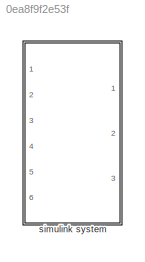
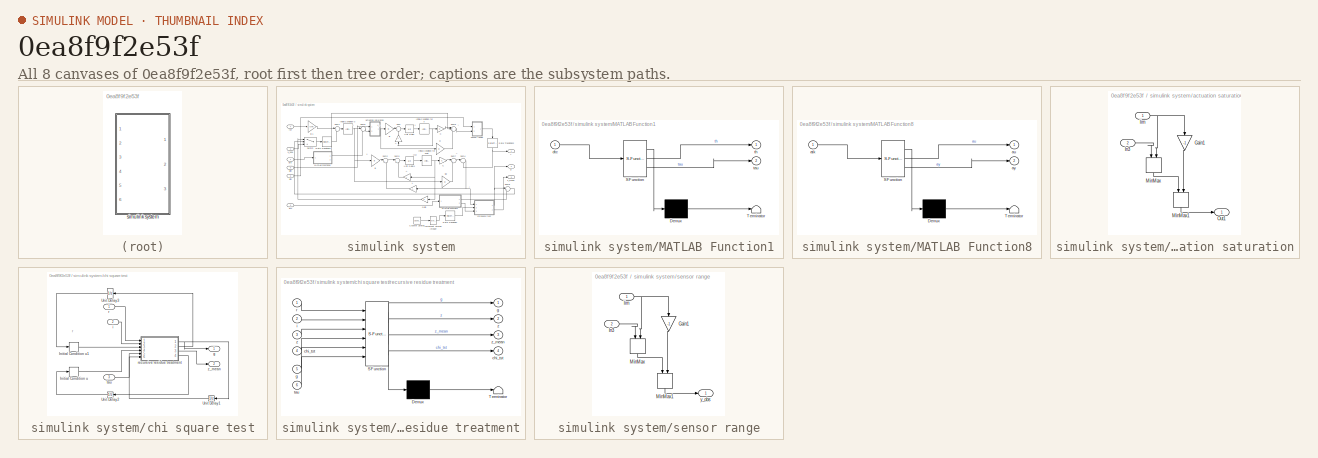
[diagram: thumbnail index - all 8 canvases of the model, root first then tree order]
MODEL slx_0ea8f9f2e53f
KIND model
CONFIG AbsTol = auto
CONFIG EnableMultiTasking = off
CONFIG FixedStep = auto
CONFIG MaxStep = auto
CONFIG MinStep = auto
CONFIG RelTol = 1e-3
CONFIG SampleTimeConstraint = Unconstrained
CONFIG SolverName = VariableStepAuto
CONFIG StartTime = 0.0
CONFIG StopTime = 7.1
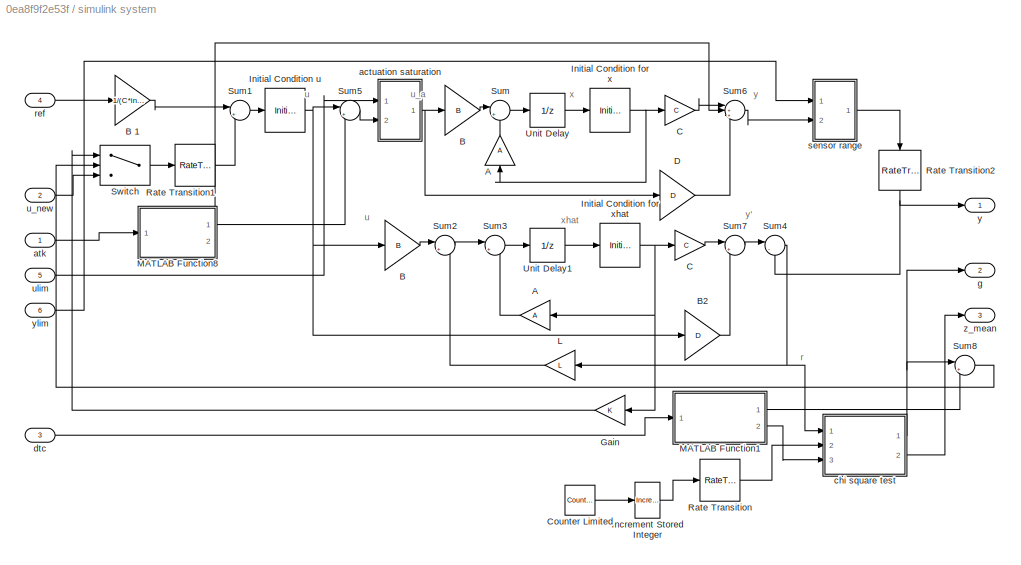
BLOCK [SubSystem] simulink system
  Ports = [6, 3]
  RequestExecContextInheritance = off
BLOCK [Gain] simulink system/A
  Gain = A
  Multiplication = Matrix(K*u)
  NameLocation = top
BLOCK [Gain] simulink system/A 
  Gain = A
  Multiplication = Matrix(K*u)
  NameLocation = right
BLOCK [Gain] simulink system/B
  Gain = B
  Multiplication = Matrix(K*u)
BLOCK [Gain] simulink system/B 
  Gain = B
  Multiplication = Matrix(K*u)
BLOCK [Gain] simulink system/B 1
  Gain = 1/(C*inv(eye(size(A))-A-B*K)*B)
  Multiplication = Matrix(K*u)
BLOCK [Gain] simulink system/B2
  Gain = D
  Multiplication = Matrix(K*u)
BLOCK [Gain] simulink system/C
  Gain = C
  Multiplication = Matrix(K*u)
BLOCK [Gain] simulink system/C 
  Gain = C
  Multiplication = Matrix(K*u)
BLOCK [Reference] simulink system/Counter Limited  REF=simulink/Sources/Counter
Limited
  Ports = [0, 1]
  SourceBlock = simulink/Sources/Counter\nLimited
  SourceProductBaseCode = SL
  SourceType = Counter Limited
BLOCK [Gain] simulink system/D
  Gain = D
  Multiplication = Matrix(K*u)
BLOCK [Gain] simulink system/Gain
  Gain = K
  Multiplication = Matrix(K*u)
  NameLocation = top
BLOCK [Reference] simulink system/Increment Stored Integer  REF=simulink/Additional Math
& Discrete/Additional Math:
Increment - Decrement/Increment
Stored Integer
  Ports = [1, 1]
  SourceBlock = simulink/Additional Math\n& Discrete/Additional Math:\nIncrement - Decrement/Increment\nStored Integer
  SourceProductBaseCode = SL
  SourceType = Stored Integer Value Increment
BLOCK [InitialCondition] simulink system/Initial Condition for x
  Value = [0;0]
BLOCK [InitialCondition] simulink system/Initial Condition for xhat
  Value = [0;0]
BLOCK [InitialCondition] simulink system/Initial Condition u
  Value = zeros(size(B,2),1)
BLOCK [Gain] simulink system/L
  Gain = L
  Multiplication = Matrix(K*u)
  NameLocation = top
BLOCK [SubSystem] simulink system/MATLAB Function1
  ErrorFcn = Stateflow.Translate.translate
  PermitHierarchicalResolution = ExplicitOnly
  Ports = [1, 2]
  RequestExecContextInheritance = off
  SFBlockType = MATLAB Function
  TreatAsAtomicUnit = on
BLOCK [Demux] simulink system/MATLAB Function1/ Demux 
  Outputs = 1
  Ports = [1, 1]
BLOCK [S-Function] simulink system/MATLAB Function1/ SFunction 
  EnableBusSupport = on
  FunctionName = sf_sfun
  PortCounts = [1 3]
  Ports = [1, 3]
  SFcnIsStateOwnerBlock = off
  SFunctionDeploymentMode = off
  Tag = Stateflow S-Function 2
BLOCK [Terminator] simulink system/MATLAB Function1/ Terminator 
BLOCK [Inport] simulink system/MATLAB Function1/dtc
BLOCK [Outport] simulink system/MATLAB Function1/tau
  Port = 2
BLOCK [Outport] simulink system/MATLAB Function1/th
BLOCK [SubSystem] simulink system/MATLAB Function8
  ErrorFcn = Stateflow.Translate.translate
  PermitHierarchicalResolution = ExplicitOnly
  Ports = [1, 2]
  RequestExecContextInheritance = off
  SFBlockType = MATLAB Function
  TreatAsAtomicUnit = on
BLOCK [Demux] simulink system/MATLAB Function8/ Demux 
  Outputs = 1
  Ports = [1, 1]
BLOCK [S-Function] simulink system/MATLAB Function8/ SFunction 
  EnableBusSupport = on
  FunctionName = sf_sfun
  PortCounts = [1 3]
  Ports = [1, 3]
  SFcnIsStateOwnerBlock = off
  SFunctionDeploymentMode = off
  Tag = Stateflow S-Function 11
BLOCK [Terminator] simulink system/MATLAB Function8/ Terminator 
BLOCK [Inport] simulink system/MATLAB Function8/atk
BLOCK [Outport] simulink system/MATLAB Function8/au
BLOCK [Outport] simulink system/MATLAB Function8/ay
  Port = 2
BLOCK [RateTransition] simulink system/Rate Transition
  OutPortSampleTime = Ts
BLOCK [RateTransition] simulink system/Rate Transition1
  OutPortSampleTime = Ts
BLOCK [RateTransition] simulink system/Rate Transition2
  NameLocation = left
  OutPortSampleTime = Ts
BLOCK [Sum] simulink system/Sum
  Inputs = |++
  Ports = [2, 1]
BLOCK [Sum] simulink system/Sum1
  Inputs = |+-
  Ports = [2, 1]
BLOCK [Sum] simulink system/Sum2
  Inputs = |++
  Ports = [2, 1]
BLOCK [Sum] simulink system/Sum3
  Inputs = |++
  Ports = [2, 1]
BLOCK [Sum] simulink system/Sum4
  Inputs = |-+
  NameLocation = top
  Ports = [2, 1]
BLOCK [Sum] simulink system/Sum5
  Inputs = |++
  Ports = [2, 1]
BLOCK [Sum] simulink system/Sum6
  Inputs = |+++
  Ports = [3, 1]
BLOCK [Sum] simulink system/Sum7
  Inputs = |++
  NameLocation = top
  Ports = [2, 1]
BLOCK [Sum] simulink system/Sum8
  Inputs = |+-
  Ports = [2, 1]
BLOCK [Switch] simulink system/Switch
  Criteria = u2 > Threshold
  InputSameDT = off
  SaturateOnIntegerOverflow = off
BLOCK [UnitDelay] simulink system/Unit Delay
  HasFrameUpgradeWarning = on
  SampleTime = -1
BLOCK [UnitDelay] simulink system/Unit Delay1
  HasFrameUpgradeWarning = on
  SampleTime = -1
BLOCK [SubSystem] simulink system/actuation saturation
  Ports = [2, 1]
  RequestExecContextInheritance = off
BLOCK [Gain] simulink system/actuation saturation/Gain1
  Gain = -1
  NameLocation = left
BLOCK [Inport] simulink system/actuation saturation/In3
  Port = 2
BLOCK [MinMax] simulink system/actuation saturation/MinMax
  Inputs = 2
  NameLocation = left
  Ports = [2, 1]
BLOCK [MinMax] simulink system/actuation saturation/MinMax1
  Function = max
  Inputs = 2
  NameLocation = left
  Ports = [2, 1]
BLOCK [Outport] simulink system/actuation saturation/Out1
BLOCK [Inport] simulink system/actuation saturation/lim
BLOCK [Inport] simulink system/atk
BLOCK [SubSystem] simulink system/chi square test
  Ports = [3, 2]
  RequestExecContextInheritance = off
BLOCK [InitialCondition] simulink system/chi square test/Initial Condition u
  Value = [0]
BLOCK [InitialCondition] simulink system/chi square test/Initial Condition u1
  Value = [0]
BLOCK [UnitDelay] simulink system/chi square test/Unit Delay1
  HasFrameUpgradeWarning = on
  SampleTime = Ts
BLOCK [UnitDelay] simulink system/chi square test/Unit Delay2
  HasFrameUpgradeWarning = on
  SampleTime = Ts
BLOCK [UnitDelay] simulink system/chi square test/Unit Delay3
  HasFrameUpgradeWarning = on
  InitialCondition = [0]
  SampleTime = Ts
BLOCK [Outport] simulink system/chi square test/g
BLOCK [Inport] simulink system/chi square test/i
  Port = 2
BLOCK [Inport] simulink system/chi square test/r
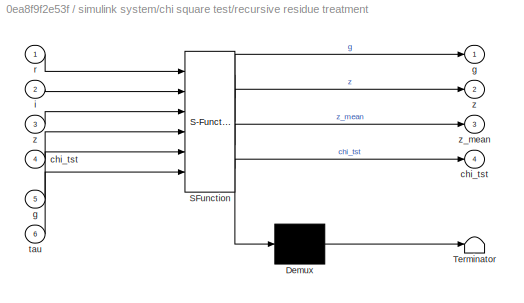
BLOCK [SubSystem] simulink system/chi square test/recursive residue treatment
  ErrorFcn = Stateflow.Translate.translate
  PermitHierarchicalResolution = ExplicitOnly
  Ports = [6, 4]
  RequestExecContextInheritance = off
  SFBlockType = MATLAB Function
  TreatAsAtomicUnit = on
BLOCK [Demux] simulink system/chi square test/recursive residue treatment/ Demux 
  Outputs = 1
  Ports = [1, 1]
BLOCK [S-Function] simulink system/chi square test/recursive residue treatment/ SFunction 
  EnableBusSupport = on
  FunctionName = sf_sfun
  PortCounts = [6 5]
  Ports = [6, 5]
  SFcnIsStateOwnerBlock = off
  SFunctionDeploymentMode = off
  Tag = Stateflow S-Function 12
BLOCK [Terminator] simulink system/chi square test/recursive residue treatment/ Terminator 
BLOCK [Outport] simulink system/chi square test/recursive residue treatment/chi_tst
  Port = 4
BLOCK [Inport] simulink system/chi square test/recursive residue treatment/chi_tst 
  Port = 4
BLOCK [Outport] simulink system/chi square test/recursive residue treatment/g
BLOCK [Inport] simulink system/chi square test/recursive residue treatment/g 
  Port = 5
BLOCK [Inport] simulink system/chi square test/recursive residue treatment/i
  Port = 2
BLOCK [Inport] simulink system/chi square test/recursive residue treatment/r
BLOCK [Inport] simulink system/chi square test/recursive residue treatment/tau
  Port = 6
BLOCK [Outport] simulink system/chi square test/recursive residue treatment/z
  Port = 2
BLOCK [Inport] simulink system/chi square test/recursive residue treatment/z 
  Port = 3
BLOCK [Outport] simulink system/chi square test/recursive residue treatment/z_mean
  Port = 3
BLOCK [Inport] simulink system/chi square test/tau
  Port = 3
BLOCK [Outport] simulink system/chi square test/z_mean
  Port = 2
BLOCK [Inport] simulink system/dtc
  NameLocation = top
  Port = 3
BLOCK [Outport] simulink system/g
  Port = 2
BLOCK [Inport] simulink system/ref
  Port = 4
BLOCK [SubSystem] simulink system/sensor range
  Ports = [2, 1]
  RequestExecContextInheritance = off
BLOCK [Gain] simulink system/sensor range/Gain1
  Gain = -1
  NameLocation = left
BLOCK [Inport] simulink system/sensor range/In3
  Port = 2
BLOCK [MinMax] simulink system/sensor range/MinMax
  Inputs = 2
  NameLocation = left
  Ports = [2, 1]
BLOCK [MinMax] simulink system/sensor range/MinMax1
  Function = max
  Inputs = 2
  NameLocation = left
  Ports = [2, 1]
BLOCK [Inport] simulink system/sensor range/lim
BLOCK [Outport] simulink system/sensor range/y_obs
BLOCK [Inport] simulink system/u_new
  Port = 2
BLOCK [Inport] simulink system/ulim
  Port = 5
BLOCK [Outport] simulink system/y
BLOCK [Inport] simulink system/ylim
  Port = 6
BLOCK [Outport] simulink system/z_mean
  Port = 3
ANNOTATION simulink system: r
ANNOTATION simulink system: u
ANNOTATION simulink system: u_a
ANNOTATION simulink system: x
ANNOTATION simulink system: xhat
ANNOTATION simulink system: y
ANNOTATION simulink system: y'
ANNOTATION simulink system/chi square test: r
LINE simulink system/A :1 -> simulink system/Sum:2
LINE simulink system/A:1 -> simulink system/Sum3:2
LINE simulink system/B 1:1 -> simulink system/Sum1:1
LINE simulink system/B :1 -> simulink system/Sum:1
LINE simulink system/B2:1 -> simulink system/Sum7:2
LINE simulink system/B:1 -> simulink system/Sum2:1
LINE simulink system/C :1 -> simulink system/Sum6:1
LINE simulink system/C:1 -> simulink system/Sum7:1
LINE simulink system/Counter Limited:1 -> simulink system/Increment Stored Integer:1
LINE simulink system/D:1 -> simulink system/Sum6:3
LINE simulink system/Gain:1 -> simulink system/Switch:1
LINE simulink system/Increment Stored Integer:1 -> simulink system/Rate Transition:1
NET simulink system/Initial Condition for x:1 -> simulink system/A :1, simulink system/C :1
NET simulink system/Initial Condition for xhat:1 -> simulink system/A:1, simulink system/C:1, simulink system/Gain:1
NET simulink system/Initial Condition u:1 -> simulink system/B2:1, simulink system/B:1, simulink system/Sum5:1
LINE simulink system/L:1 -> simulink system/Sum2:2
LINE simulink system/MATLAB Function1:1 -> simulink system/Sum8:2
LINE simulink system/MATLAB Function1:2 -> simulink system/chi square test:3
LINE simulink system/MATLAB Function8:1 -> simulink system/Sum5:2
LINE simulink system/MATLAB Function8:2 -> simulink system/Sum6:2
LINE simulink system/Rate Transition1:1 -> simulink system/Sum1:2
NET simulink system/Rate Transition2:1 -> simulink system/Sum4:2, simulink system/y:1
LINE simulink system/Rate Transition:1 -> simulink system/chi square test:2
LINE simulink system/Sum1:1 -> simulink system/Initial Condition u:1
LINE simulink system/Sum2:1 -> simulink system/Sum3:1
LINE simulink system/Sum3:1 -> simulink system/Unit Delay1:1
NET simulink system/Sum4:1 -> simulink system/L:1, simulink system/chi square test:1
LINE simulink system/Sum5:1 -> simulink system/actuation saturation:2
LINE simulink system/Sum6:1 -> simulink system/sensor range:2
LINE simulink system/Sum7:1 -> simulink system/Sum4:1
LINE simulink system/Sum8:1 -> simulink system/Switch:2
LINE simulink system/Sum:1 -> simulink system/Unit Delay:1
LINE simulink system/Switch:1 -> simulink system/Rate Transition1:1
LINE simulink system/Unit Delay1:1 -> simulink system/Initial Condition for xhat:1
LINE simulink system/Unit Delay:1 -> simulink system/Initial Condition for x:1
LINE simulink system/actuation saturation/Gain1:1 -> simulink system/actuation saturation/MinMax1:2
LINE simulink system/actuation saturation/In3:1 -> simulink system/actuation saturation/MinMax:1
LINE simulink system/actuation saturation/MinMax1:1 -> simulink system/actuation saturation/Out1:1
LINE simulink system/actuation saturation/MinMax:1 -> simulink system/actuation saturation/MinMax1:1
NET simulink system/actuation saturation/lim:1 -> simulink system/actuation saturation/Gain1:1, simulink system/actuation saturation/MinMax:2
NET simulink system/actuation saturation:1 -> simulink system/B :1, simulink system/D:1
LINE simulink system/atk:1 -> simulink system/MATLAB Function8:1
LINE simulink system/chi square test/Initial Condition u1:1 -> simulink system/chi square test/recursive residue treatment:3
LINE simulink system/chi square test/Initial Condition u:1 -> simulink system/chi square test/recursive residue treatment:4
LINE simulink system/chi square test/Unit Delay1:1 -> simulink system/chi square test/recursive residue treatment:5
LINE simulink system/chi square test/Unit Delay2:1 -> simulink system/chi square test/Initial Condition u:1
LINE simulink system/chi square test/Unit Delay3:1 -> simulink system/chi square test/Initial Condition u1:1
LINE simulink system/chi square test/i:1 -> simulink system/chi square test/recursive residue treatment:2
LINE simulink system/chi square test/r:1 -> simulink system/chi square test/recursive residue treatment:1
NET simulink system/chi square test/recursive residue treatment:1 -> simulink system/chi square test/Unit Delay1:1, simulink system/chi square test/g:1
LINE simulink system/chi square test/recursive residue treatment:2 -> simulink system/chi square test/Unit Delay3:1
LINE simulink system/chi square test/recursive residue treatment:3 -> simulink system/chi square test/z_mean:1
LINE simulink system/chi square test/recursive residue treatment:4 -> simulink system/chi square test/Unit Delay2:1
LINE simulink system/chi square test/tau:1 -> simulink system/chi square test/recursive residue treatment:6
NET simulink system/chi square test:1 -> simulink system/Sum8:1, simulink system/g:1
LINE simulink system/chi square test:2 -> simulink system/z_mean:1
LINE simulink system/dtc:1 -> simulink system/MATLAB Function1:1
LINE simulink system/ref:1 -> simulink system/B 1:1
LINE simulink system/sensor range/Gain1:1 -> simulink system/sensor range/MinMax1:2
LINE simulink system/sensor range/In3:1 -> simulink system/sensor range/MinMax:1
LINE simulink system/sensor range/MinMax1:1 -> simulink system/sensor range/y_obs:1
LINE simulink system/sensor range/MinMax:1 -> simulink system/sensor range/MinMax1:1
NET simulink system/sensor range/lim:1 -> simulink system/sensor range/Gain1:1, simulink system/sensor range/MinMax:2
LINE simulink system/sensor range:1 -> simulink system/Rate Transition2:1
LINE simulink system/u_new:1 -> simulink system/Switch:3
LINE simulink system/ulim:1 -> simulink system/actuation saturation:1
LINE simulink system/ylim:1 -> simulink system/sensor range:1
note: NET lines group one-source signal fan-out (src -> all destinations, sorted); 1:1 wires keep LINE
CHART simulink system/MATLAB Function1 states=1 transitions=1
  STATE_LABEL 'eML_blk_kernel()'
  STATE_LABEL 'SCRIPT:\nfunction [th,tau] = dtcParams(dtc)\n    th= dtc(1);\n    tau= dtc(2);'
CHART simulink system/MATLAB Function8 states=1 transitions=1
  STATE_LABEL 'eML_blk_kernel()'
  STATE_LABEL 'SCRIPT:\nfunction [au,ay] = atkParams(atk)\n    au= atk(1);\n    ay= atk(2);'
CHART simulink system/chi square test/recursive residue treatment states=1 transitions=1
  STATE_LABEL 'eML_blk_kernel()'
  STATE_LABEL "SCRIPT:\nfunction [g,z,z_mean,chi_tst] = fcn(r,i,z,chi_tst,g,tau)\ni\nz(i)=r\nz_mean=mean(z)\nP= size(z',1)\nchi_tst(i)= z(:,i)'*z(:,i)/P\ng(i) = 0;              \nfor k = max(1,i-tau+1):i\n    g(i) = g(i) + chi_tst(k)  % Calculate gk (chi2 test)\nend\n\n"
CHART  states=0 transitions=0
CHART  states=0 transitions=0
CHART  states=0 transitions=0
